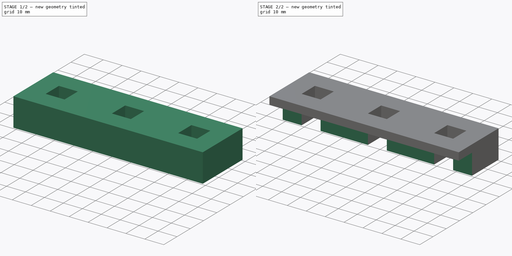
[diagram: build sequence overview — one tinted view per stage of 2, left to right]
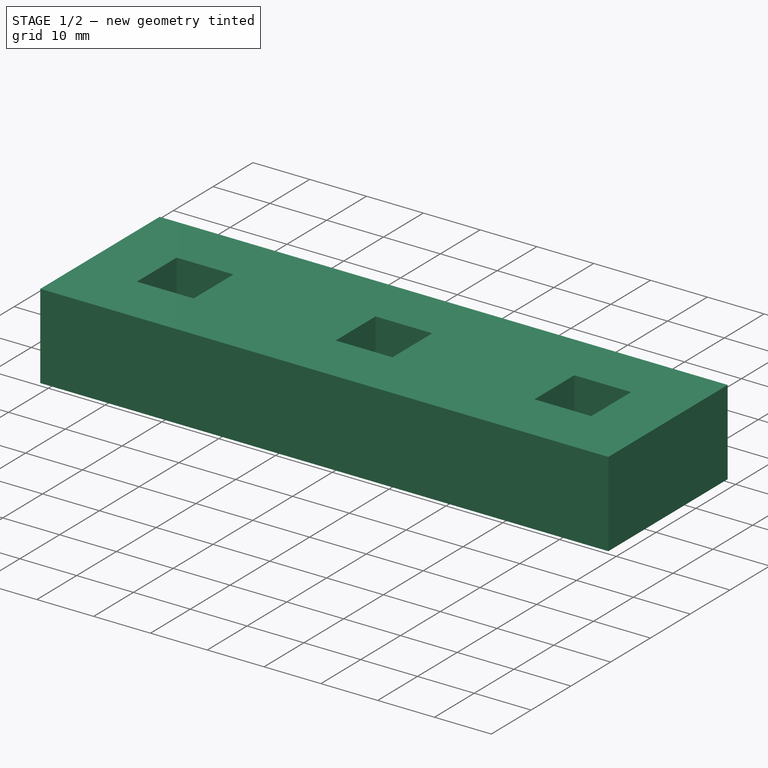
[diagram: stage 1 of 2 — iso view after this stage's code; geometry added in this stage tinted green]
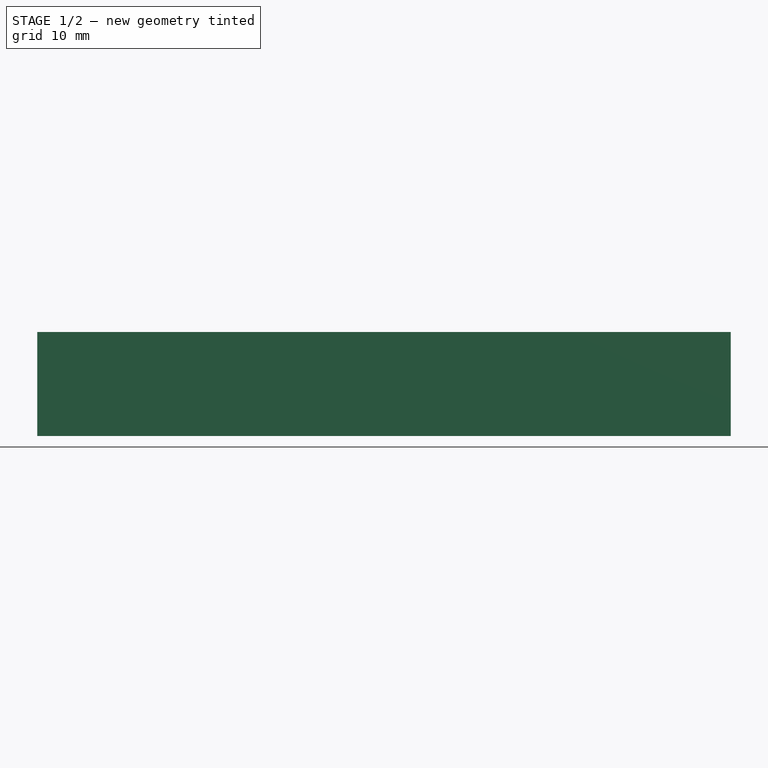
[diagram: stage 1 of 2 — front view after this stage's code; geometry added in this stage tinted green]
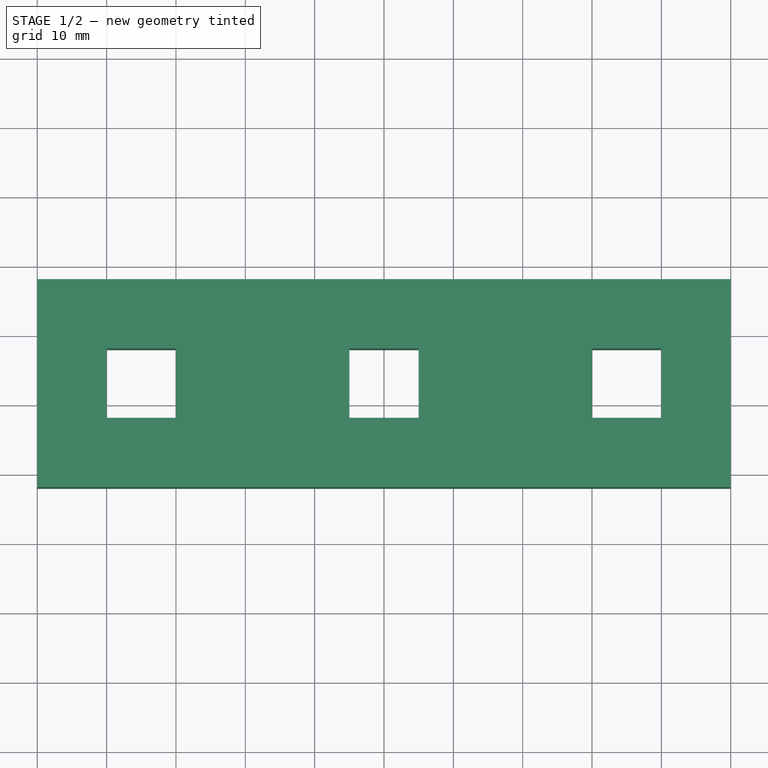
[diagram: stage 1 of 2 — top view after this stage's code; geometry added in this stage tinted green]
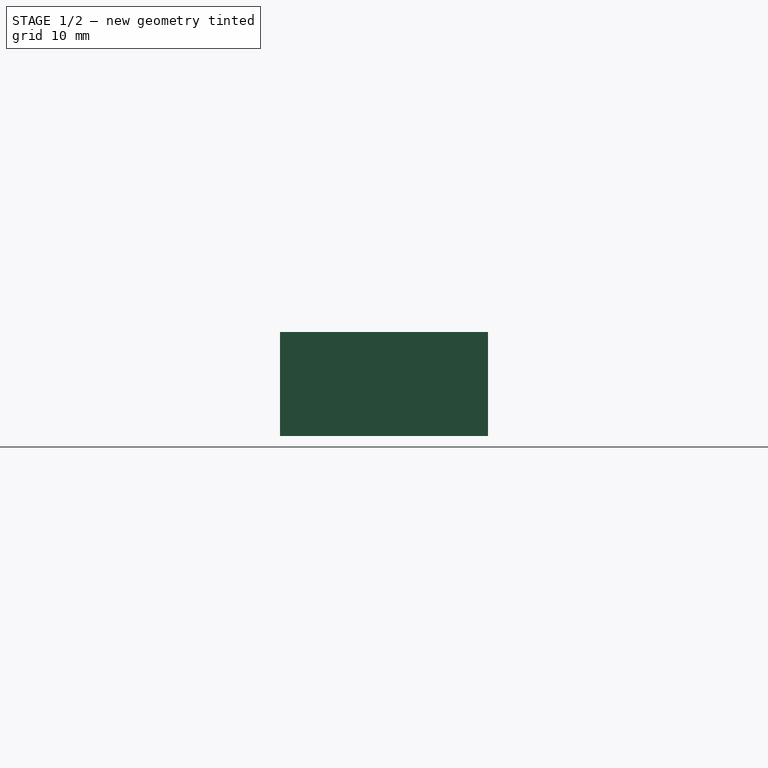
[diagram: stage 1 of 2 — right view after this stage's code; geometry added in this stage tinted green]
FCSTD DOCUMENT  (FreeCAD 0.21R33694 (Git))
Label: ngen_LePow_MonitorHolder_moarExtruder
License: All rights reserved
LicenseURL: https://en.wikipedia.org/wiki/All_rights_reserved
objects: Sketcher::SketchObject×2, PartDesign::Pad×1, PartDesign::Pocket×1, PartDesign::Body×1
note: 7 computed .brp shape members not serialized (recipe doc carries the construction recipe); baked Part::Feature solids carry a one-line shape summary decoded from their .brp

FEATURE [Sketcher::SketchObject] Sketch
  FullyConstrained = true
  MapMode = 5
  Support = -> [XY_Plane]
  sketch-geometry (24):
    g0: LineSegment StartX=30 StartY=8 StartZ=0 EndX=40 EndY=8 EndZ=0
    g1: LineSegment StartX=40 StartY=8 StartZ=0 EndX=40 EndY=18 EndZ=0
    g2: LineSegment StartX=40 StartY=18 StartZ=0 EndX=30 EndY=18 EndZ=0
    g3: LineSegment StartX=30 StartY=18 StartZ=0 EndX=30 EndY=8 EndZ=0
    g4: LineSegment StartX=-40 StartY=8 StartZ=0 EndX=-30 EndY=8 EndZ=0
    g5: LineSegment StartX=-30 StartY=8 StartZ=0 EndX=-30 EndY=18 EndZ=0
    g6: LineSegment StartX=-30 StartY=18 StartZ=0 EndX=-40 EndY=18 EndZ=0
    g7: LineSegment StartX=-40 StartY=18 StartZ=0 EndX=-40 EndY=8 EndZ=0
    g8: GeomPoint X=-40 Y=13 Z=0
    g9: LineSegment StartX=-40 StartY=13 StartZ=0 EndX=40 EndY=13 EndZ=0
    g10: GeomPoint X=40 Y=13 Z=0
    g11: LineSegment StartX=-50 StartY=28 StartZ=0 EndX=50 EndY=28 EndZ=0
    g12: LineSegment StartX=50 StartY=28 StartZ=0 EndX=50 EndY=-2 EndZ=0
    g13: LineSegment StartX=50 StartY=-2 StartZ=0 EndX=-50 EndY=-2 EndZ=0
    g14: LineSegment StartX=-50 StartY=-2 StartZ=0 EndX=-50 EndY=28 EndZ=0
    g15: LineSegment StartX=-40 StartY=18 StartZ=0 EndX=-50 EndY=18 EndZ=0
    g16: LineSegment StartX=-30 StartY=18 StartZ=0 EndX=-30 EndY=28 EndZ=0
    g17: LineSegment StartX=-30 StartY=8 StartZ=0 EndX=-30 EndY=-2 EndZ=0
    g18: LineSegment StartX=40 StartY=18 StartZ=0 EndX=50 EndY=18 EndZ=0
    g19: LineSegment StartX=-5 StartY=18 StartZ=0 EndX=5 EndY=18 EndZ=0
    g20: LineSegment StartX=5 StartY=18 StartZ=0 EndX=5 EndY=8 EndZ=0
    g21: LineSegment StartX=5 StartY=8 StartZ=0 EndX=-5 EndY=8 EndZ=0
    g22: LineSegment StartX=-5 StartY=8 StartZ=0 EndX=-5 EndY=18 EndZ=0
    g23: GeomPoint X=5 Y=13 Z=0
  constraints (63):
    c: Coincident(g0,g1)
    c: Coincident(g1,g2)
    c: Coincident(g2,g3)
    c: Coincident(g3,g0)
    c: Horizontal(g0)
    c: Horizontal(g2)
    c: Vertical(g1)
    c: Vertical(g3)
    c: Coincident(g4,g5)
    c: Coincident(g5,g6)
    c: Coincident(g6,g7)
    c: Coincident(g7,g4)
    c: Horizontal(g4)
    c: Horizontal(g6)
    c: Vertical(g5)
    c: Vertical(g7)
    c: Equal(g5,g4)
    c: Equal(g3,g0)
    c: Equal(g4,g0)
    c: DistanceX(g4,g4) = 10
    c: Symmetric(g6,g4,g8)
    c: Symmetric(g1,g0,g10)
    c: Coincident(g9,g8)
    c: Coincident(g10,g9)
    c: Symmetric(g8,g9,g-2)
    c: DistanceY(g-1,g8) = 13
    c: Coincident(g11,g12)
    c: Coincident(g12,g13)
    c: Coincident(g13,g14)
    c: Coincident(g14,g11)
    c: Horizontal(g11)
    c: Horizontal(g13)
    c: Vertical(g12)
    c: Vertical(g14)
    c: Coincident(g15,g6)
    c: PointOnObject(g15,g14)
    c: Horizontal(g15)
    c: DistanceX(g15,g15) = 10
    c: Coincident(g16,g5)
    c: PointOnObject(g16,g11)
    c: Vertical(g16)
    c: Equal(g16,g15)
    c: Coincident(g17,g4)
    c: PointOnObject(g17,g13)
    c: Vertical(g17)
    c: Equal(g17,g16)
    c: Coincident(g18,g1)
    c: PointOnObject(g18,g12)
    c: Horizontal(g18)
    c: Equal(g15,g18)
    c: DistanceX(g11,g11) = 100
    c: Coincident(g19,g20)
    c: Coincident(g20,g21)
    c: Coincident(g21,g22)
    c: Coincident(g22,g19)
    c: Horizontal(g21)
    c: Vertical(g20)
    c: Vertical(g22)
    c: Equal(g19,g20)
    c: Equal(g19,g2)
    c: Symmetric(g20,g19,g23)
    c: PointOnObject(g23,g9)
    c: Symmetric(g19,g19,g-2)
FEATURE [PartDesign::Pad] Pad
  Direction = (0,0,1)
  Length = 15
  Length2 = 10
  Profile = -> Sketch
  ReferenceAxis = -> Sketch [N_Axis]
  Type = 0
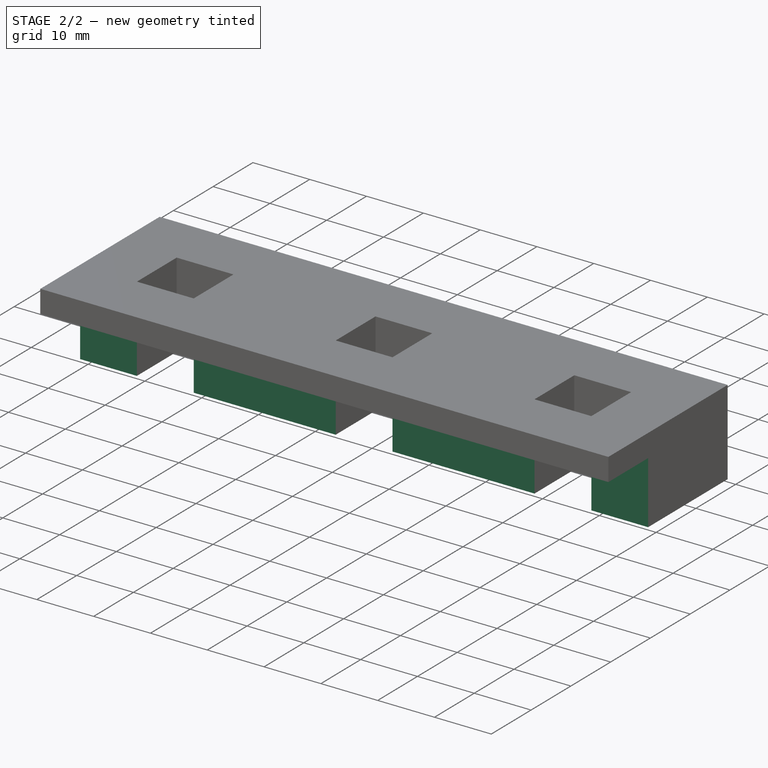
[diagram: stage 2 of 2 — iso view after this stage's code; geometry added in this stage tinted green]
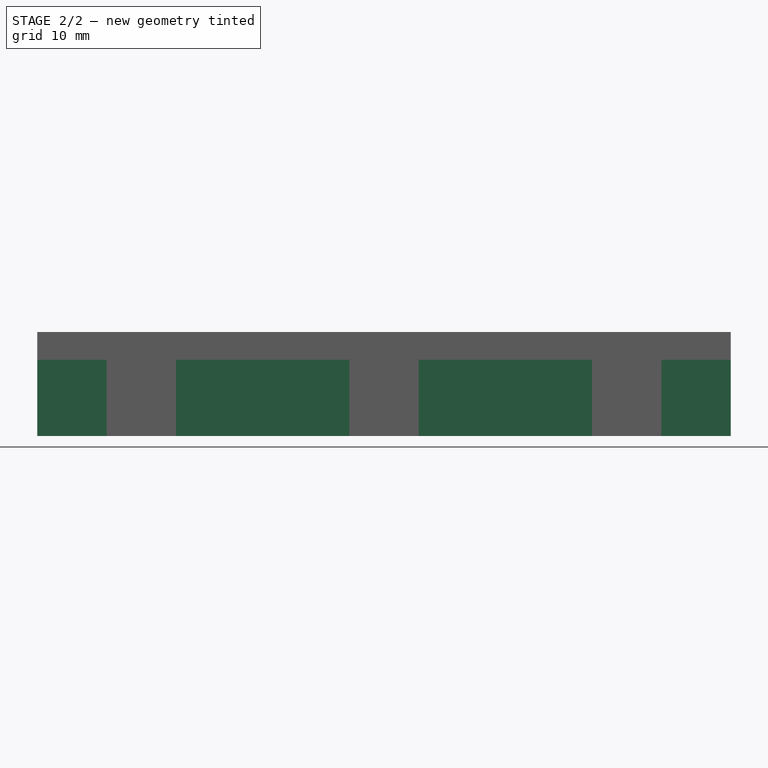
[diagram: stage 2 of 2 — front view after this stage's code; geometry added in this stage tinted green]
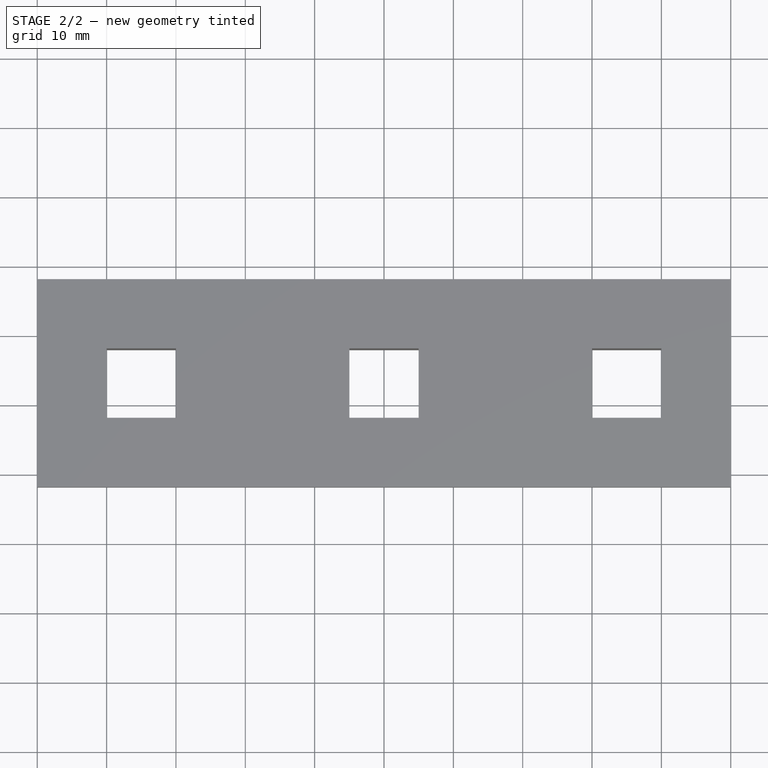
[diagram: stage 2 of 2 — top view after this stage's code; geometry added in this stage tinted green]
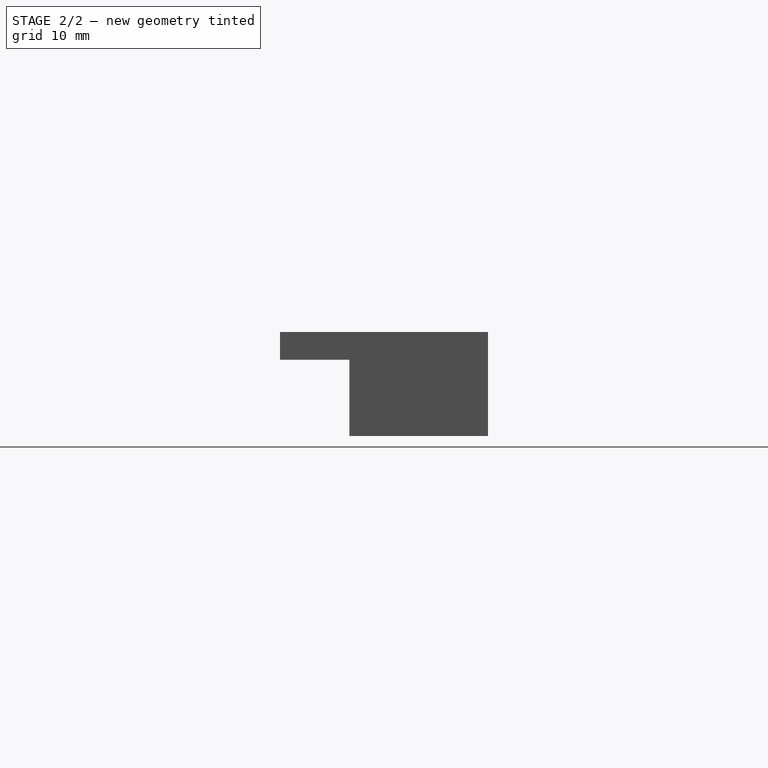
[diagram: stage 2 of 2 — right view after this stage's code; geometry added in this stage tinted green]
FEATURE [Sketcher::SketchObject] Sketch001
  ExternalGeometry = -> [Pad]
  FullyConstrained = true
  MapMode = 5
  Placement = pos=(0,0,0) rot=(1,0,0;3.14159rad)
  Support = -> [Pad]
  sketch-geometry (4):
    g0: LineSegment StartX=-50 StartY=2 StartZ=0 EndX=50 EndY=2 EndZ=0
    g1: LineSegment StartX=50 StartY=2 StartZ=0 EndX=50 EndY=-8 EndZ=0
    g2: LineSegment StartX=50 StartY=-8 StartZ=0 EndX=-50 EndY=-8 EndZ=0
    g3: LineSegment StartX=-50 StartY=-8 StartZ=0 EndX=-50 EndY=2 EndZ=0
  constraints (10):
    c: Coincident(g0,g1)
    c: Coincident(g1,g2)
    c: Coincident(g2,g3)
    c: Coincident(g3,g0)
    c: Horizontal(g2)
    c: Vertical(g1)
    c: Vertical(g3)
    c: Coincident(g0,g-3)
    c: Coincident(g0,g-3)
    c: DistanceY(g1,g1) = 10
FEATURE [PartDesign::Pocket] Pocket
  BaseFeature = -> Pad
  Direction = (0,0,1)
  Length = 11
  Length2 = 5
  Profile = -> Sketch001
  ReferenceAxis = -> Sketch001 [N_Axis]
  Type = 0
FEATURE [PartDesign::Body] Body
  Group = -> [Sketch,Pad,Sketch001,Pocket]
  Origin = -> Origin
  Tip = -> Pocket
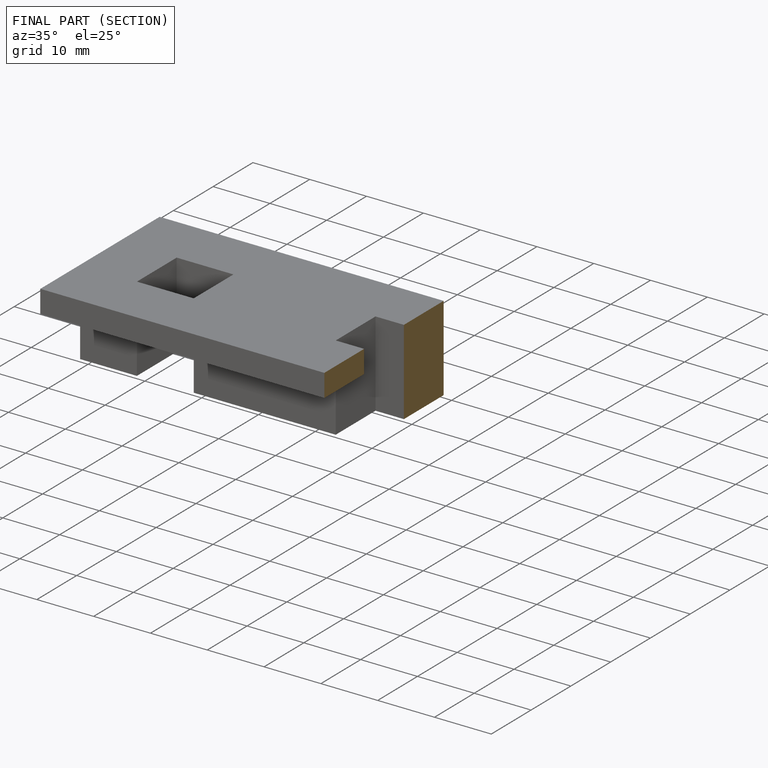
[diagram: finished part — half-section view (interior)]
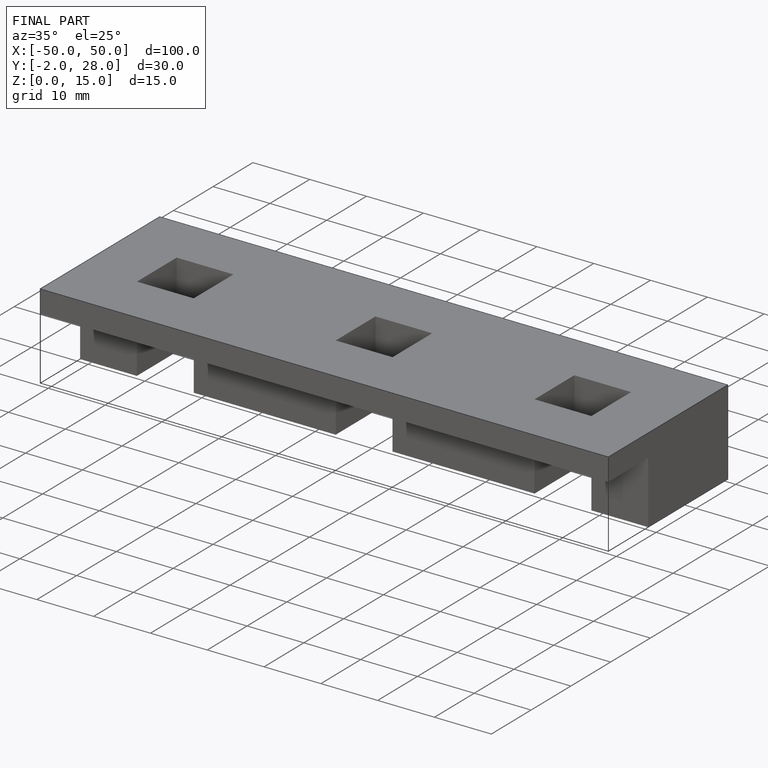
[diagram: finished part — iso view with bounding-box wireframe]
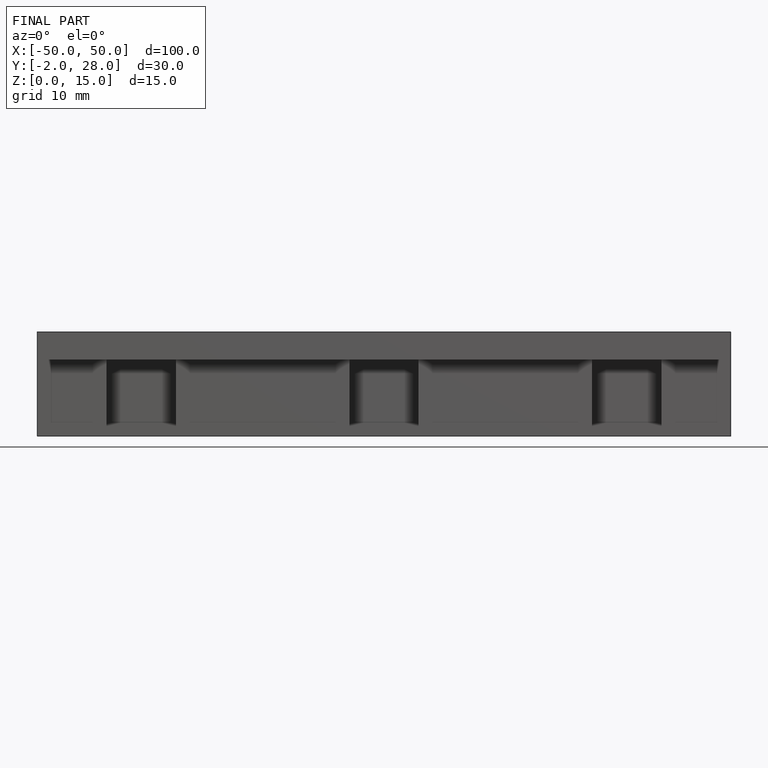
[diagram: finished part — front view with bounding-box wireframe]
